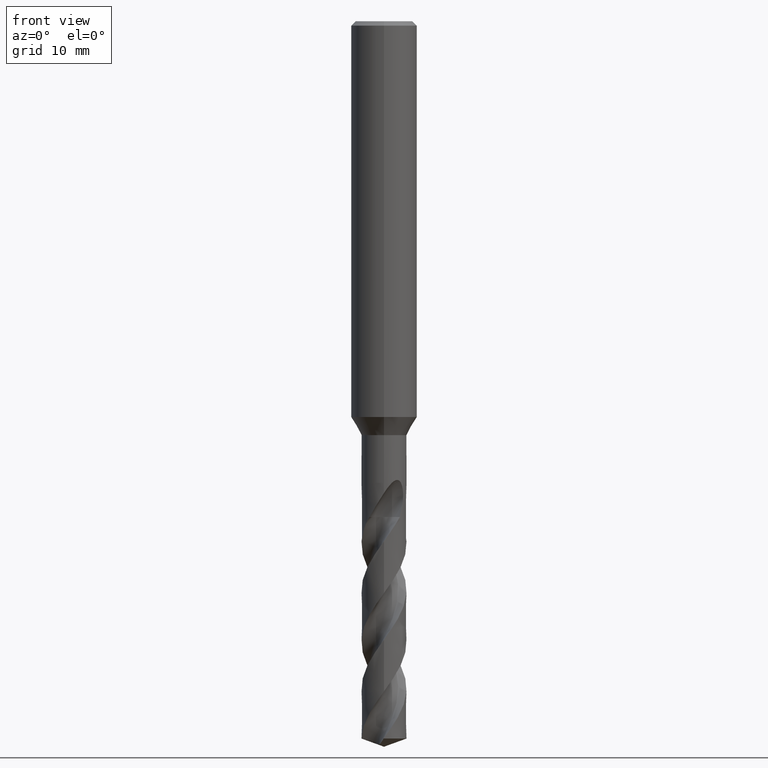
[diagram: clean part render]
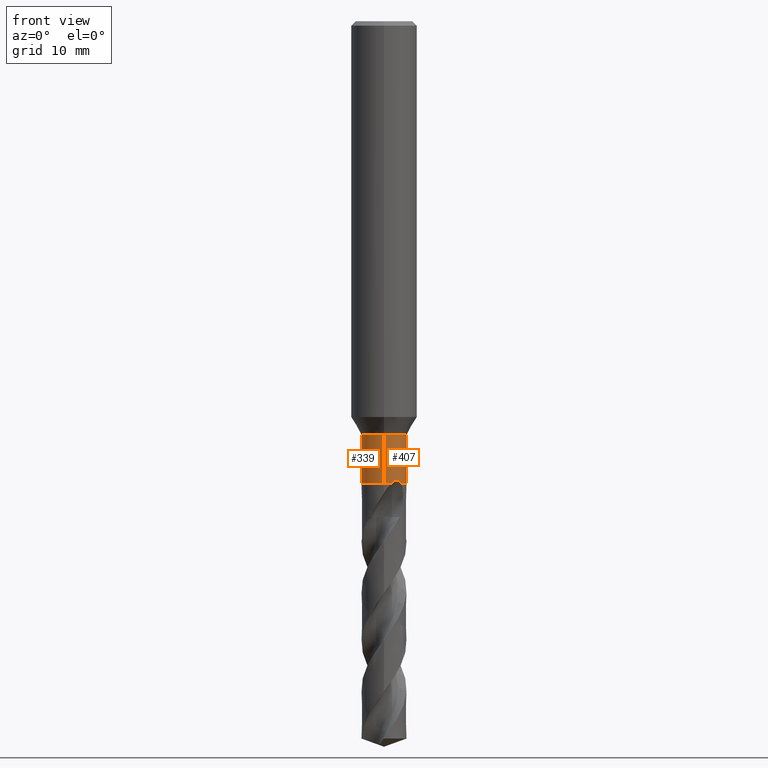
[diagram: same view with one multi-face feature highlighted, each face labeled with its STEP entity id]
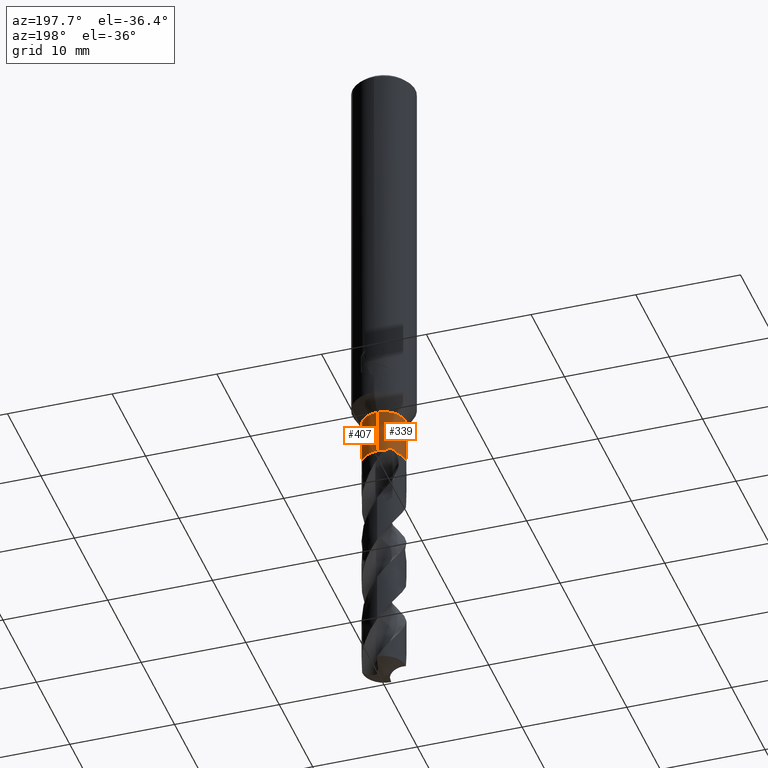
[diagram: same view with one multi-face feature highlighted, each face labeled with its STEP entity id]
A machine part, front view. The highlighted faces form ONE feature: a constant-radius fillet chain: 2 tangent blend faces with common blend radius 2.05 mm. The faces share edges in the B-rep.
A second angle (auxiliary view) of the same feature is appended — it is thin or edge-on in the first view.
Their STEP definitions:
[1] entity #339 (Cylinder):
#339=ADVANCED_FACE('',(#849),#850,.T.);
#369=EDGE_CURVE('',#761,#379,#883,.T.);
#379=VERTEX_POINT('',#894);
#437=VERTEX_POINT('',#958);
#439=VERTEX_POINT('',#960);
#469=EDGE_CURVE('',#639,#437,#993,.T.);
#523=EDGE_CURVE('',#639,#439,#1051,.T.);
#553=EDGE_CURVE('',#379,#689,#1083,.T.);
#577=EDGE_CURVE('',#761,#439,#1109,.T.);
#581=EDGE_CURVE('',#689,#437,#1114,.T.);
#639=VERTEX_POINT('',#1178);
#689=VERTEX_POINT('',#1236);
#761=VERTEX_POINT('',#1314);
#849=FACE_OUTER_BOUND('',#1769,.T.);
#850=CYLINDRICAL_SURFACE('',#1770,2.05);
#883=LINE('',#2535,#2536);
#894=CARTESIAN_POINT('',(2.51044302533587E-016,-2.05,-37.6454482671904));
#958=CARTESIAN_POINT('',(-2.51044302533587E-016,2.05,-42.0));
#960=CARTESIAN_POINT('',(-1.55188758464114,1.33945695139362,-42.0));
#993=CIRCLE('',#2952,2.05);
#1051=B_SPLINE_CURVE_WITH_KNOTS('',3,(#3813,#3814,#3815,#3816,#3817,#3818,#3819,#3820,#3821,#3822,#3823,#3824),.UNSPECIFIED.,.F.,.F.,(4,2,2,2,2,4),(0.0,0.386128097709538,0.620957416180817,0.814189496285032,1.00794973489733,1.21557677613799),.UNSPECIFIED.);
#1083=CIRCLE('',#4053,2.05);
#1109=CIRCLE('',#4179,2.05);
#1114=LINE('',#4185,#4186);
#1178=CARTESIAN_POINT('',(-0.701355844129819,1.92629176915257,-42.0));
#1236=CARTESIAN_POINT('',(0.0,2.05,-37.6454482671904));
#1314=CARTESIAN_POINT('',(2.51044302533587E-016,-2.05,-42.0));
#1769=EDGE_LOOP('',(#5441,#5442,#5443,#5444,#5445,#5446));
#1770=AXIS2_PLACEMENT_3D('',#5447,#5448,#5449);
#2535=CARTESIAN_POINT('',(2.51044302533587E-016,-2.05,-39.8227241335952));
#2536=VECTOR('',#5478,1.0);
#2952=AXIS2_PLACEMENT_3D('',#5609,#5610,#5611);
#3813=CARTESIAN_POINT('',(-0.701355844129818,1.92629176915257,-42.0));
#3814=CARTESIAN_POINT('',(-0.790479082418783,1.89384232145066,-41.9129932036452));
#3815=CARTESIAN_POINT('',(-0.890187051579842,1.85040072246808,-41.8315673993025));
#3816=CARTESIAN_POINT('',(-1.05613383367428,1.75847328202308,-41.7494453059008));
#3817=CARTESIAN_POINT('',(-1.12034923309588,1.71854817318914,-41.7295594226693));
#3818=CARTESIAN_POINT('',(-1.2364768269621,1.63638282780044,-41.7251107990893));
#3819=CARTESIAN_POINT('',(-1.28577451289109,1.59779098283853,-41.7350509433038));
#3820=CARTESIAN_POINT('',(-1.37778934917572,1.51916708232312,-41.7786131207925));
#3821=CARTESIAN_POINT('',(-1.41830469928259,1.48103503095868,-41.8112534660855));
#3822=CARTESIAN_POINT('',(-1.49209459306635,1.40679963103026,-41.8941173536917));
#3823=CARTESIAN_POINT('',(-1.52440388599356,1.37129941610801,-41.9451357655932));
#3824=CARTESIAN_POINT('',(-1.55188758464113,1.33945695139363,-42.0));
#4053=AXIS2_PLACEMENT_3D('',#5697,#5698,#5699);
#4179=AXIS2_PLACEMENT_3D('',#5736,#5737,#5738);
#4185=CARTESIAN_POINT('',(-2.51044302533587E-016,2.05,-39.8227241335952));
#4186=VECTOR('',#5748,1.0);
#5441=ORIENTED_EDGE('',*,*,#581,.T.);
#5442=ORIENTED_EDGE('',*,*,#469,.F.);
#5443=ORIENTED_EDGE('',*,*,#523,.T.);
#5444=ORIENTED_EDGE('',*,*,#577,.F.);
#5445=ORIENTED_EDGE('',*,*,#369,.T.);
#5446=ORIENTED_EDGE('',*,*,#553,.T.);
#5447=CARTESIAN_POINT('',(0.0,0.0,-39.8227241335952));
#5448=DIRECTION('',(-0.0,-0.0,1.0));
#5449=DIRECTION('',(0.0,1.0,0.0));
#5478=DIRECTION('',(-0.0,-0.0,1.0));
#5609=CARTESIAN_POINT('',(0.0,0.0,-42.0));
#5610=DIRECTION('',(0.0,0.0,-1.0));
#5611=DIRECTION('',(0.0,1.0,0.0));
#5697=CARTESIAN_POINT('',(0.0,0.0,-37.6454482671904));
#5698=DIRECTION('',(0.0,0.0,-1.0));
#5699=DIRECTION('',(0.0,1.0,0.0));
#5736=CARTESIAN_POINT('',(0.0,0.0,-42.0));
#5737=DIRECTION('',(0.0,0.0,-1.0));
#5738=DIRECTION('',(0.0,1.0,0.0));
#5748=DIRECTION('',(0.0,0.0,-1.0));
[2] entity #407 (Cylinder):
#311=EDGE_CURVE('',#437,#673,#820,.T.);
#369=EDGE_CURVE('',#761,#379,#883,.T.);
#379=VERTEX_POINT('',#894);
#407=ADVANCED_FACE('',(#923),#924,.T.);
#437=VERTEX_POINT('',#958);
#563=EDGE_CURVE('',#591,#761,#1094,.T.);
#581=EDGE_CURVE('',#689,#437,#1114,.T.);
#591=VERTEX_POINT('',#1124);
#601=EDGE_CURVE('',#689,#379,#1134,.T.);
#673=VERTEX_POINT('',#1218);
#685=EDGE_CURVE('',#591,#673,#1232,.T.);
#689=VERTEX_POINT('',#1236);
#761=VERTEX_POINT('',#1314);
#820=CIRCLE('',#1609,2.05);
#883=LINE('',#2535,#2536);
#894=CARTESIAN_POINT('',(2.51044302533587E-016,-2.05,-37.6454482671904));
#923=FACE_OUTER_BOUND('',#2758,.T.);
#924=CYLINDRICAL_SURFACE('',#2759,2.05);
#958=CARTESIAN_POINT('',(-2.51044302533587E-016,2.05,-42.0));
#1094=CIRCLE('',#4144,2.05);
#1114=LINE('',#4185,#4186);
#1124=CARTESIAN_POINT('',(0.701355844129812,-1.92629176915257,-42.0));
#1134=CIRCLE('',#4263,2.05);
#1218=CARTESIAN_POINT('',(1.55188758464114,-1.33945695139362,-42.0));
#1232=B_SPLINE_CURVE_WITH_KNOTS('',3,(#4744,#4745,#4746,#4747,#4748,#4749,#4750,#4751,#4752,#4753,#4754,#4755),.UNSPECIFIED.,.F.,.F.,(4,2,2,2,2,4),(0.0,0.386128097709458,0.620957416180673,0.814189496284889,1.00794973489728,1.2155767761379),.UNSPECIFIED.);
#1236=CARTESIAN_POINT('',(0.0,2.05,-37.6454482671904));
#1314=CARTESIAN_POINT('',(2.51044302533587E-016,-2.05,-42.0));
#1609=AXIS2_PLACEMENT_3D('',#5419,#5420,#5421);
#2535=CARTESIAN_POINT('',(2.51044302533587E-016,-2.05,-39.8227241335952));
#2536=VECTOR('',#5478,1.0);
#2758=EDGE_LOOP('',(#5523,#5524,#5525,#5526,#5527,#5528));
#2759=AXIS2_PLACEMENT_3D('',#5529,#5530,#5531);
#4144=AXIS2_PLACEMENT_3D('',#5715,#5716,#5717);
#4185=CARTESIAN_POINT('',(-2.51044302533587E-016,2.05,-39.8227241335952));
#4186=VECTOR('',#5748,1.0);
#4263=AXIS2_PLACEMENT_3D('',#5750,#5751,#5752);
#4744=CARTESIAN_POINT('',(0.701355844129816,-1.92629176915257,-42.0));
#4745=CARTESIAN_POINT('',(0.790479082418762,-1.89384232145067,-41.9129932036452));
#4746=CARTESIAN_POINT('',(0.890187051579836,-1.85040072246808,-41.8315673993025));
#4747=CARTESIAN_POINT('',(1.05613383367428,-1.75847328202308,-41.7494453059008));
#4748=CARTESIAN_POINT('',(1.12034923309588,-1.71854817318914,-41.7295594226693));
#4749=CARTESIAN_POINT('',(1.23647682696212,-1.63638282780043,-41.7251107990893));
#4750=CARTESIAN_POINT('',(1.28577451289112,-1.5977909828385,-41.7350509433038));
#4751=CARTESIAN_POINT('',(1.37778934917571,-1.51916708232312,-41.7786131207925));
#4752=CARTESIAN_POINT('',(1.41830469928258,-1.48103503095869,-41.8112534660854));
#4753=CARTESIAN_POINT('',(1.49209459306635,-1.40679963103026,-41.8941173536916));
#4754=CARTESIAN_POINT('',(1.52440388599355,-1.37129941610802,-41.9451357655931));
#4755=CARTESIAN_POINT('',(1.55188758464114,-1.33945695139362,-42.0));
#5419=CARTESIAN_POINT('',(0.0,0.0,-42.0));
#5420=DIRECTION('',(0.0,0.0,-1.0));
#5421=DIRECTION('',(0.0,1.0,0.0));
#5478=DIRECTION('',(-0.0,-0.0,1.0));
#5523=ORIENTED_EDGE('',*,*,#581,.F.);
#5524=ORIENTED_EDGE('',*,*,#601,.T.);
#5525=ORIENTED_EDGE('',*,*,#369,.F.);
#5526=ORIENTED_EDGE('',*,*,#563,.F.);
#5527=ORIENTED_EDGE('',*,*,#685,.T.);
#5528=ORIENTED_EDGE('',*,*,#311,.F.);
#5529=CARTESIAN_POINT('',(0.0,0.0,-39.8227241335952));
#5530=DIRECTION('',(-0.0,-0.0,1.0));
#5531=DIRECTION('',(0.0,1.0,0.0));
#5715=CARTESIAN_POINT('',(0.0,0.0,-42.0));
#5716=DIRECTION('',(0.0,0.0,-1.0));
#5717=DIRECTION('',(0.0,1.0,0.0));
#5748=DIRECTION('',(0.0,0.0,-1.0));
#5750=CARTESIAN_POINT('',(0.0,0.0,-37.6454482671904));
#5751=DIRECTION('',(0.0,0.0,-1.0));
#5752=DIRECTION('',(0.0,1.0,0.0));